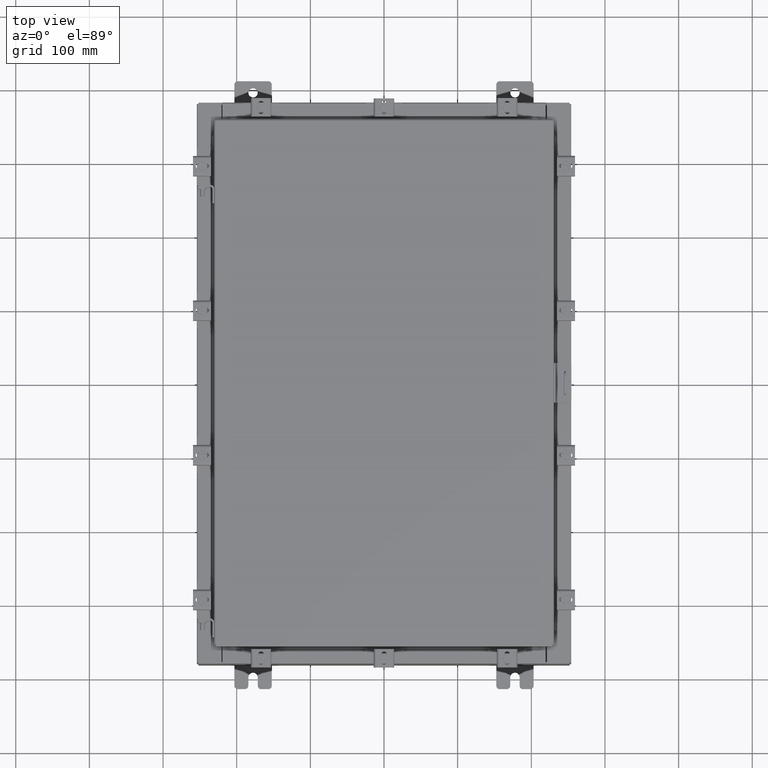
[diagram: clean part render]
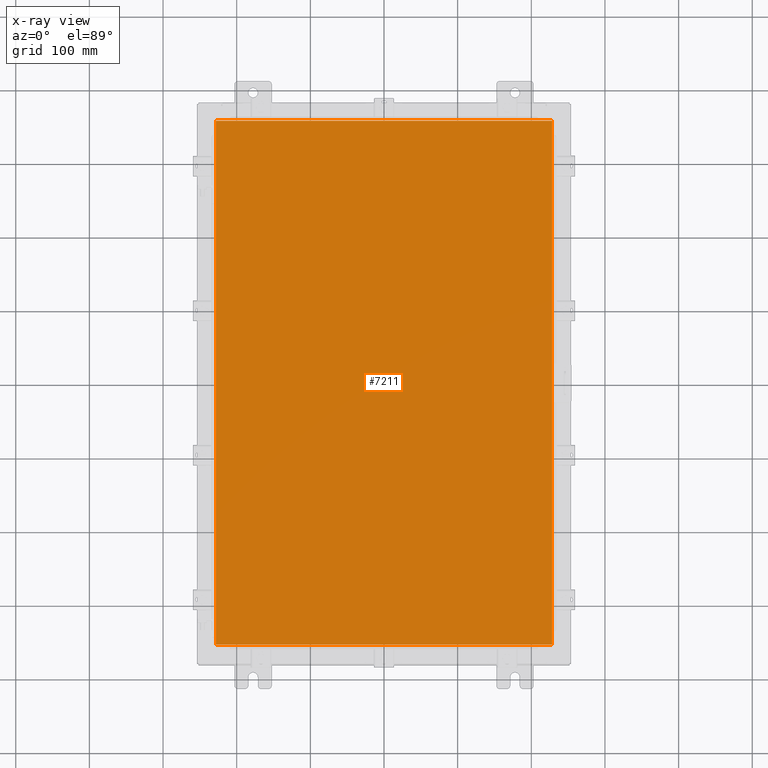
[diagram: x-ray — body ghosted, one internal face saturated and labeled with its STEP entity id]
A machine part, top view, then the same camera in x-ray: the body is ghosted and one INTERNAL B-rep face — a face not visible from any outside direction — is saturated and labeled: STEP entity #7211.
In plain terms, the highlighted planar face has unit normal (0, 0, -1).
Its self-contained STEP definition (entity closure, byte-faithful):
#805 = FACE_OUTER_BOUND ( 'NONE', #20487, .T. ) ;
#1373 = DIRECTION ( 'NONE',  ( -1.000000000000000000, 0.0000000000000000000, -0.0000000000000000000 ) ) ;
#1572 = ORIENTED_EDGE ( 'NONE', *, *, #14864, .F. ) ;
#1626 = VERTEX_POINT ( 'NONE', #18417 ) ;
#1984 = VECTOR ( 'NONE', #18998, 39.37007874015748100 ) ;
#3848 = ORIENTED_EDGE ( 'NONE', *, *, #5002, .F. ) ;
#5002 = EDGE_CURVE ( 'NONE', #16613, #12892, #17330, .T. ) ;
#6185 = LINE ( 'NONE', #9015, #15172 ) ;
#6203 = CARTESIAN_POINT ( 'NONE',  ( 8.990300000000001300, 14.00629999999999800, -0.07470000000000019700 ) ) ;
#6493 = CARTESIAN_POINT ( 'NONE',  ( -8.990299999999997700, 14.00630000000000100, -0.07470000000000019700 ) ) ;
#6661 = PLANE ( 'NONE',  #22026 ) ;
#6731 = LINE ( 'NONE', #6493, #1984 ) ;
#7211 = ADVANCED_FACE ( 'NONE', ( #805 ), #6661, .T. ) ;
#8344 = VECTOR ( 'NONE', #10005, 39.37007874015748100 ) ;
#8385 = VECTOR ( 'NONE', #18702, 39.37007874015748100 ) ;
#8450 = CARTESIAN_POINT ( 'NONE',  ( 8.990300000000001300, -14.00629999999999800, -0.07470000000000000300 ) ) ;
#8457 = CARTESIAN_POINT ( 'NONE',  ( 0.0000000000000000000, 0.0000000000000000000, -0.07470000000000000300 ) ) ;
#9015 = CARTESIAN_POINT ( 'NONE',  ( 8.990300000000001300, -14.00629999999999800, -0.07470000000000019700 ) ) ;
#10005 = DIRECTION ( 'NONE',  ( 1.000000000000000000, -0.0000000000000000000, -0.0000000000000000000 ) ) ;
#12069 = DIRECTION ( 'NONE',  ( 0.0000000000000000000, 0.0000000000000000000, -1.000000000000000000 ) ) ;
#12892 = VERTEX_POINT ( 'NONE', #17958 ) ;
#13683 = LINE ( 'NONE', #22535, #8344 ) ;
#13688 = CARTESIAN_POINT ( 'NONE',  ( 8.990300000000001300, 14.00629999999999800, -0.07470000000000000300 ) ) ;
#14427 = EDGE_CURVE ( 'NONE', #14950, #16613, #6185, .T. ) ;
#14561 = ORIENTED_EDGE ( 'NONE', *, *, #14427, .F. ) ;
#14864 = EDGE_CURVE ( 'NONE', #12892, #1626, #6731, .T. ) ;
#14950 = VERTEX_POINT ( 'NONE', #8450 ) ;
#15172 = VECTOR ( 'NONE', #21499, 39.37007874015748100 ) ;
#15536 = ORIENTED_EDGE ( 'NONE', *, *, #21097, .F. ) ;
#16613 = VERTEX_POINT ( 'NONE', #13688 ) ;
#17330 = LINE ( 'NONE', #6203, #8385 ) ;
#17958 = CARTESIAN_POINT ( 'NONE',  ( -8.990299999999997700, 14.00629999999999800, -0.07470000000000000300 ) ) ;
#18417 = CARTESIAN_POINT ( 'NONE',  ( -8.990299999999996000, -14.00629999999999600, -0.07470000000000000300 ) ) ;
#18702 = DIRECTION ( 'NONE',  ( -1.000000000000000000, -0.0000000000000000000, -0.0000000000000000000 ) ) ;
#18998 = DIRECTION ( 'NONE',  ( 0.0000000000000000000, -1.000000000000000000, 0.0000000000000000000 ) ) ;
#20487 = EDGE_LOOP ( 'NONE', ( #14561, #15536, #1572, #3848 ) ) ;
#21097 = EDGE_CURVE ( 'NONE', #1626, #14950, #13683, .T. ) ;
#21499 = DIRECTION ( 'NONE',  ( 0.0000000000000000000, 1.000000000000000000, 0.0000000000000000000 ) ) ;
#22026 = AXIS2_PLACEMENT_3D ( 'NONE', #8457, #12069, #1373 ) ;
#22535 = CARTESIAN_POINT ( 'NONE',  ( -8.990299999999996000, -14.00629999999999800, -0.07469999999999800400 ) ) ;